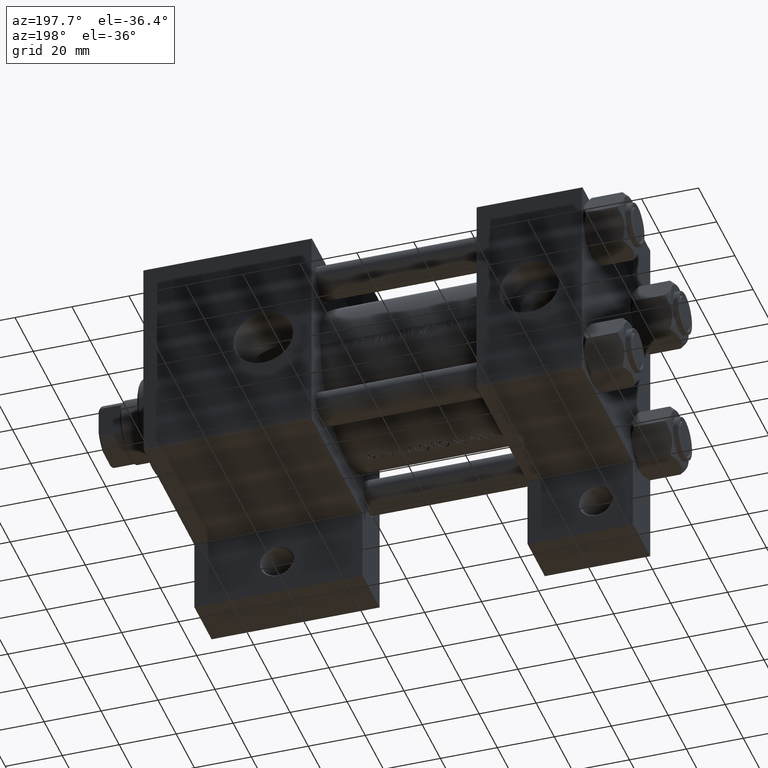
[diagram: clean part render]
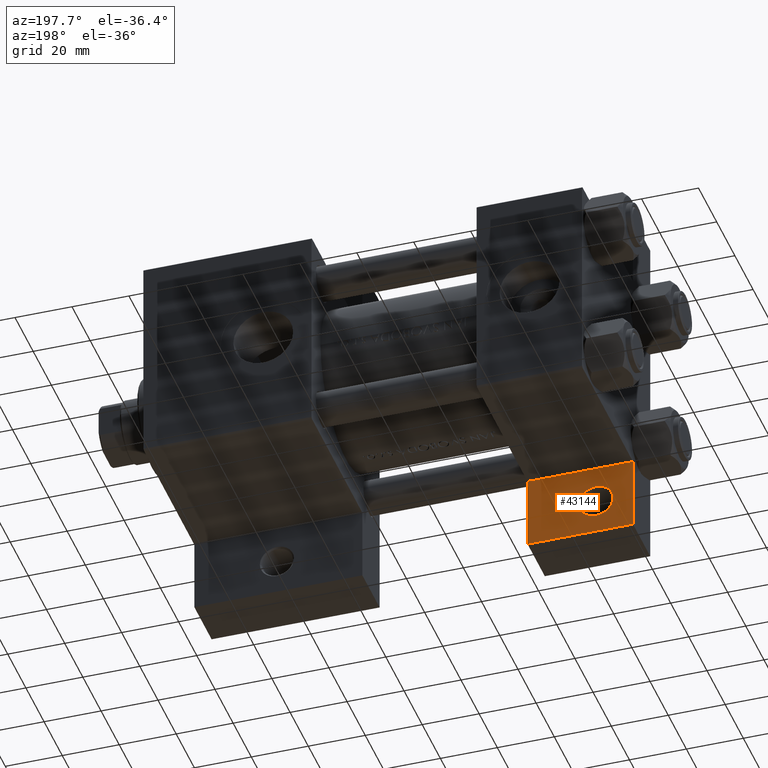
[diagram: same view with one face highlighted and labeled with its STEP entity id]
A machine part, auxiliary view. The second image highlights one B-rep face of the part: STEP entity #43144.
In plain terms, the highlighted planar face has unit normal (0, -1, 0).
Its self-contained STEP definition (entity closure, byte-faithful):
#1023 = CARTESIAN_POINT ( 'NONE',  ( 1.561251128379126385E-14, 63.50000000000000000, -18.50000000000000355 ) ) ;
#1582 = EDGE_CURVE ( 'NONE', #21947, #16688, #9349, .T. ) ;
#1617 = ORIENTED_EDGE ( 'NONE', *, *, #28666, .T. ) ;
#1884 = FACE_OUTER_BOUND ( 'NONE', #43555, .T. ) ;
#2356 = FACE_BOUND ( 'NONE', #27336, .T. ) ;
#3213 = EDGE_CURVE ( 'NONE', #26308, #21947, #40475, .T. ) ;
#4333 = LINE ( 'NONE', #11548, #27702 ) ;
#4394 = DIRECTION ( 'NONE',  ( -1.000000000000000000, 0.000000000000000000, 0.000000000000000000 ) ) ;
#5484 = CARTESIAN_POINT ( 'NONE',  ( 0.000000000000000000, 0.000000000000000000, -18.50000000000000000 ) ) ;
#9242 = ORIENTED_EDGE ( 'NONE', *, *, #24918, .T. ) ;
#9257 = CARTESIAN_POINT ( 'NONE',  ( 37.00000000000000711, 37.50000000000000711, -18.50000000000000355 ) ) ;
#9349 = LINE ( 'NONE', #13670, #27906 ) ;
#9523 = ORIENTED_EDGE ( 'NONE', *, *, #17750, .T. ) ;
#9593 = AXIS2_PLACEMENT_3D ( 'NONE', #5484, #42503, #34823 ) ;
#10969 = CARTESIAN_POINT ( 'NONE',  ( 13.00000000000000355, 51.00000000000000000, -18.50000000000000000 ) ) ;
#11548 = CARTESIAN_POINT ( 'NONE',  ( 1.214306433183764651E-14, 37.50000000000002842, -18.49999999999999645 ) ) ;
#11780 = DIRECTION ( 'NONE',  ( 1.000000000000000000, -3.750753461571475931E-16, 0.000000000000000000 ) ) ;
#13041 = CIRCLE ( 'NONE', #41451, 5.999500000000051791 ) ;
#13659 = PLANE ( 'NONE',  #9593 ) ;
#13670 = CARTESIAN_POINT ( 'NONE',  ( 1.561251128379126385E-14, 63.50000000000001421, -18.50000000000000355 ) ) ;
#13948 = CARTESIAN_POINT ( 'NONE',  ( 0.000000000000000000, 37.49999999999999289, -18.49999999999999645 ) ) ;
#15370 = CARTESIAN_POINT ( 'NONE',  ( 13.00000000000000355, 51.00000000000000000, -18.50000000000000000 ) ) ;
#16688 = VERTEX_POINT ( 'NONE', #13948 ) ;
#17628 = LINE ( 'NONE', #25313, #47463 ) ;
#17750 = EDGE_CURVE ( 'NONE', #24471, #26308, #17628, .T. ) ;
#18347 = AXIS2_PLACEMENT_3D ( 'NONE', #10969, #21793, #39829 ) ;
#21793 = DIRECTION ( 'NONE',  ( 0.000000000000000000, 0.000000000000000000, -1.000000000000000000 ) ) ;
#21947 = VERTEX_POINT ( 'NONE', #30371 ) ;
#22939 = CARTESIAN_POINT ( 'NONE',  ( 37.00000000000001421, 63.50000000000000000, -18.50000000000000355 ) ) ;
#24017 = DIRECTION ( 'NONE',  ( -1.334402673828314079E-16, -1.000000000000000000, 0.000000000000000000 ) ) ;
#24471 = VERTEX_POINT ( 'NONE', #9257 ) ;
#24918 = EDGE_CURVE ( 'NONE', #31328, #46707, #39066, .T. ) ;
#25313 = CARTESIAN_POINT ( 'NONE',  ( 37.00000000000001421, 63.50000000000001421, -18.50000000000000355 ) ) ;
#26308 = VERTEX_POINT ( 'NONE', #22939 ) ;
#26888 = EDGE_CURVE ( 'NONE', #46707, #31328, #13041, .T. ) ;
#27336 = EDGE_LOOP ( 'NONE', ( #34515, #9242 ) ) ;
#27702 = VECTOR ( 'NONE', #11780, 1000.000000000000000 ) ;
#27906 = VECTOR ( 'NONE', #24017, 1000.000000000000000 ) ;
#28666 = EDGE_CURVE ( 'NONE', #16688, #24471, #4333, .T. ) ;
#30262 = DIRECTION ( 'NONE',  ( -1.000000000000000000, 0.000000000000000000, 0.000000000000000000 ) ) ;
#30371 = CARTESIAN_POINT ( 'NONE',  ( 1.561251128379126385E-14, 63.50000000000000000, -18.50000000000000355 ) ) ;
#31328 = VERTEX_POINT ( 'NONE', #36077 ) ;
#32513 = DIRECTION ( 'NONE',  ( 2.668805347656626678E-16, 1.000000000000000000, 0.000000000000000000 ) ) ;
#33358 = VECTOR ( 'NONE', #4394, 1000.000000000000000 ) ;
#33876 = DIRECTION ( 'NONE',  ( 0.000000000000000000, 0.000000000000000000, -1.000000000000000000 ) ) ;
#34515 = ORIENTED_EDGE ( 'NONE', *, *, #26888, .T. ) ;
#34823 = DIRECTION ( 'NONE',  ( -1.000000000000000000, 0.000000000000000000, -0.000000000000000000 ) ) ;
#36077 = CARTESIAN_POINT ( 'NONE',  ( 7.000499999999952649, 51.00000000000000000, -18.50000000000000000 ) ) ;
#36733 = CARTESIAN_POINT ( 'NONE',  ( 18.99950000000005090, 51.00000000000000000, -18.50000000000000000 ) ) ;
#37306 = ORIENTED_EDGE ( 'NONE', *, *, #1582, .T. ) ;
#39066 = CIRCLE ( 'NONE', #18347, 5.999500000000051791 ) ;
#39829 = DIRECTION ( 'NONE',  ( -1.000000000000000000, 0.000000000000000000, 0.000000000000000000 ) ) ;
#40475 = LINE ( 'NONE', #1023, #33358 ) ;
#41451 = AXIS2_PLACEMENT_3D ( 'NONE', #15370, #33876, #30262 ) ;
#42503 = DIRECTION ( 'NONE',  ( 0.000000000000000000, 0.000000000000000000, -1.000000000000000000 ) ) ;
#43144 = ADVANCED_FACE ( 'NONE', ( #2356, #1884 ), #13659, .F. ) ;
#43555 = EDGE_LOOP ( 'NONE', ( #37306, #1617, #9523, #47490 ) ) ;
#46707 = VERTEX_POINT ( 'NONE', #36733 ) ;
#47463 = VECTOR ( 'NONE', #32513, 1000.000000000000000 ) ;
#47490 = ORIENTED_EDGE ( 'NONE', *, *, #3213, .T. ) ;